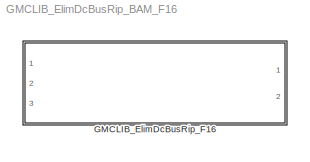
MODEL GMCLIB_ElimDcBusRip_BAM_F16
KIND model
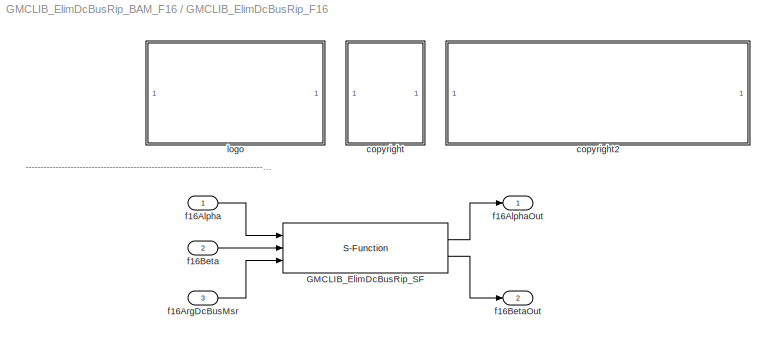
BLOCK [SubSystem] GMCLIB_ElimDcBusRip_F16
  Ports = [3, 2]
  RequestExecContextInheritance = off
  SID = 1
BLOCK [S-Function] GMCLIB_ElimDcBusRip_F16/GMCLIB_ElimDcBusRip_SF
  EnableBusSupport = off
  FunctionName = GMCLIB_ElimDcBusRip_SF_F16
  Parameters = f16ModIndex
  Ports = [3, 2]
  SID = 4
BLOCK [SubSystem] GMCLIB_ElimDcBusRip_F16/<copyright redacted>
  Ports = []
  RequestExecContextInheritance = off
  SID = 14
BLOCK [SubSystem] GMCLIB_ElimDcBusRip_F16/copyright2
  Ports = []
  RequestExecContextInheritance = off
  SID = 17
BLOCK [Inport] GMCLIB_ElimDcBusRip_F16/f16Alpha
  IconDisplay = Port number
  SID = 5
BLOCK [Outport] GMCLIB_ElimDcBusRip_F16/f16AlphaOut
  IconDisplay = Port number
  SID = 8
BLOCK [Inport] GMCLIB_ElimDcBusRip_F16/f16ArgDcBusMsr
  IconDisplay = Port number
  Port = 3
  SID = 7
BLOCK [Inport] GMCLIB_ElimDcBusRip_F16/f16Beta
  IconDisplay = Port number
  Port = 2
  SID = 6
BLOCK [Outport] GMCLIB_ElimDcBusRip_F16/f16BetaOut
  IconDisplay = Port number
  Port = 2
  SID = 9
BLOCK [SubSystem] GMCLIB_ElimDcBusRip_F16/logo
  Ports = []
  RequestExecContextInheritance = off
  SID = 10
ANNOTATION GMCLIB_ElimDcBusRip_F16: ---------------------------------------------------------------------------------------------------------------------------------------------------------------------------------------------------
LINE GMCLIB_ElimDcBusRip_F16/GMCLIB_ElimDcBusRip_SF:1 -> GMCLIB_ElimDcBusRip_F16/f16AlphaOut:1
LINE GMCLIB_ElimDcBusRip_F16/GMCLIB_ElimDcBusRip_SF:2 -> GMCLIB_ElimDcBusRip_F16/f16BetaOut:1
LINE GMCLIB_ElimDcBusRip_F16/f16Alpha:1 -> GMCLIB_ElimDcBusRip_F16/GMCLIB_ElimDcBusRip_SF:1
LINE GMCLIB_ElimDcBusRip_F16/f16ArgDcBusMsr:1 -> GMCLIB_ElimDcBusRip_F16/GMCLIB_ElimDcBusRip_SF:3
LINE GMCLIB_ElimDcBusRip_F16/f16Beta:1 -> GMCLIB_ElimDcBusRip_F16/GMCLIB_ElimDcBusRip_SF:2
